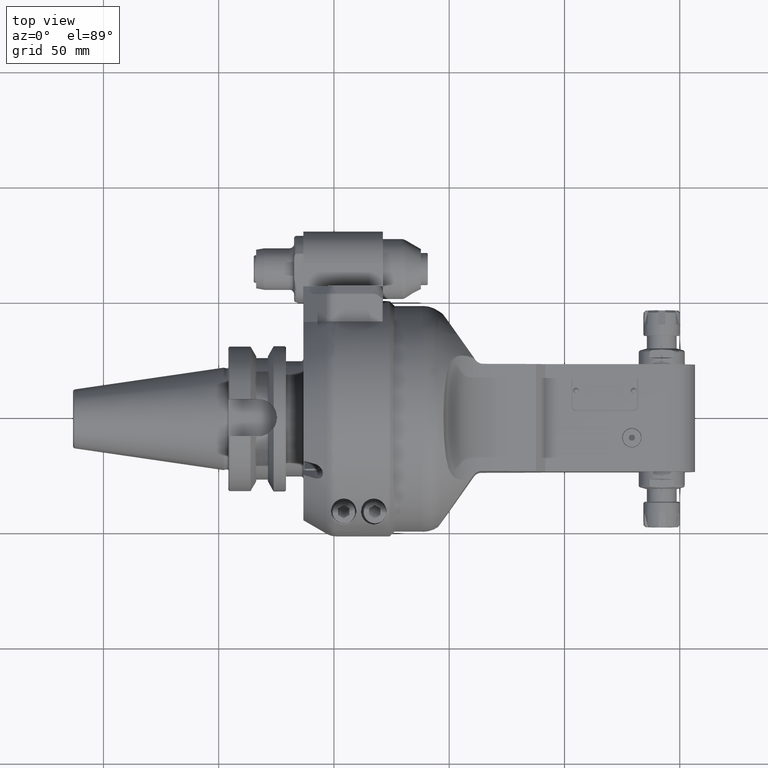
[diagram: clean part render]
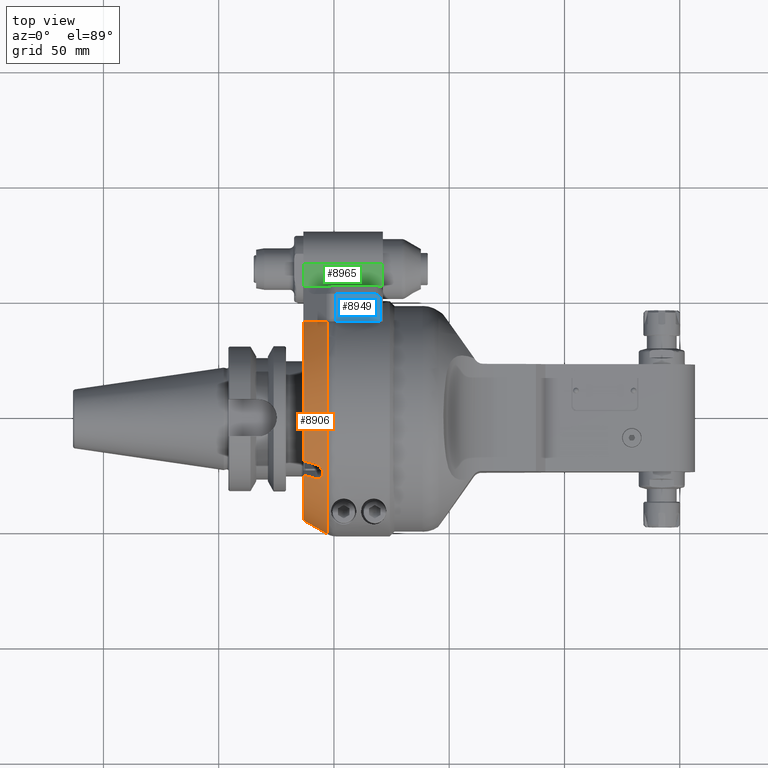
[diagram: same view with three faces highlighted in distinct colors, each labeled with its STEP entity id]
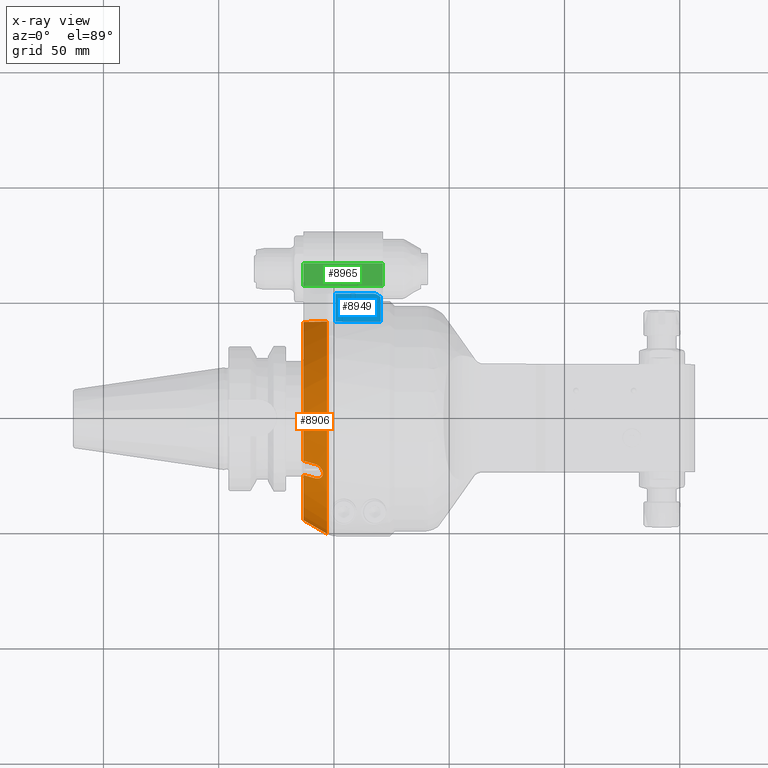
[diagram: x-ray of the same camera — body ghosted, the three highlighted faces saturated]
A machine part, top view with three faces highlighted in distinct colors.
The next image is the same camera in x-ray (body ghosted, the three faces saturated) — at least one of them is partly hidden behind the body in this view.
Their STEP definitions:

[orange] entity #8906 — the highlighted conical surface has half-angle 30 deg.
#174=(
BOUNDED_CURVE()
B_SPLINE_CURVE(2,(#13244,#13245,#13246),.UNSPECIFIED.,.F.,.F.)
B_SPLINE_CURVE_WITH_KNOTS((3,3),(-4.92391023083954,-2.81130786844121),
 .UNSPECIFIED.)
CURVE()
GEOMETRIC_REPRESENTATION_ITEM()
RATIONAL_B_SPLINE_CURVE((1.0074989594549,1.03062027413363,1.03252076511009))
REPRESENTATION_ITEM('')
);
#550=CONICAL_SURFACE('',#9549,46.96410161514,0.523598775598299);
#680=FACE_OUTER_BOUND('',#1240,.T.);
#1240=EDGE_LOOP('',(#6162,#6163,#6164,#6165,#6166,#6167,#6168,#6169));
#1887=CIRCLE('',#9550,49.92820323028);
#1888=CIRCLE('',#9551,44.);
#1889=CIRCLE('',#9552,44.);
#2320=B_SPLINE_CURVE_WITH_KNOTS('',3,(#13511,#13512,#13513,#13514,#13515,
#13516,#13517,#13518,#13519,#13520,#13521,#13522,#13523,#13524,#13525,#13526,
#13527,#13528),.UNSPECIFIED.,.F.,.F.,(4,2,2,2,2,2,2,2,4),(1.11206982951603,
1.24885677734264,1.4029266724495,1.5444028479349,1.68587902342029,1.82735519890569,
1.96883137439109,2.12290126949794,2.25968821731982),.UNSPECIFIED.);
#2322=B_SPLINE_CURVE_WITH_KNOTS('',3,(#13555,#13556,#13557,#13558,#13559,
#13560,#13561,#13562,#13563,#13564),.UNSPECIFIED.,.F.,.F.,(4,3,3,4),(0.,
0.3333333333333,0.6666666666667,1.),.UNSPECIFIED.);
#2324=B_SPLINE_CURVE_WITH_KNOTS('',3,(#13582,#13583,#13584,#13585,#13586,
#13587,#13588,#13589,#13590,#13591),.UNSPECIFIED.,.F.,.F.,(4,3,3,4),(0.,
0.3333333333333,0.6666666666667,1.),.UNSPECIFIED.);
#2325=B_SPLINE_CURVE_WITH_KNOTS('',3,(#13593,#13594,#13595,#13596,#13597,
#13598,#13599,#13600,#13601,#13602),.UNSPECIFIED.,.F.,.F.,(4,3,3,4),(0.,
0.3333333333333,0.6666666666667,1.),.UNSPECIFIED.);
#3757=VERTEX_POINT('',#13241);
#3758=VERTEX_POINT('',#13243);
#3799=VERTEX_POINT('',#13509);
#3800=VERTEX_POINT('',#13510);
#3805=VERTEX_POINT('',#13553);
#3806=VERTEX_POINT('',#13554);
#3809=VERTEX_POINT('',#13580);
#3810=VERTEX_POINT('',#13592);
#4664=EDGE_CURVE('',#3757,#3758,#174,.T.);
#4726=EDGE_CURVE('',#3799,#3800,#2320,.F.);
#4735=EDGE_CURVE('',#3805,#3806,#2322,.T.);
#4740=EDGE_CURVE('',#3758,#3806,#1887,.T.);
#4741=EDGE_CURVE('',#3809,#3757,#1888,.T.);
#4742=EDGE_CURVE('',#3809,#3800,#2324,.T.);
#4743=EDGE_CURVE('',#3799,#3810,#2325,.T.);
#4744=EDGE_CURVE('',#3805,#3810,#1889,.T.);
#6162=ORIENTED_EDGE('',*,*,#4740,.F.);
#6163=ORIENTED_EDGE('',*,*,#4664,.F.);
#6164=ORIENTED_EDGE('',*,*,#4741,.F.);
#6165=ORIENTED_EDGE('',*,*,#4742,.T.);
#6166=ORIENTED_EDGE('',*,*,#4726,.F.);
#6167=ORIENTED_EDGE('',*,*,#4743,.T.);
#6168=ORIENTED_EDGE('',*,*,#4744,.F.);
#6169=ORIENTED_EDGE('',*,*,#4735,.T.);
#8906=ADVANCED_FACE('',(#680),#550,.T.);
#9549=AXIS2_PLACEMENT_3D('',#13578,#10662,#10663);
#9550=AXIS2_PLACEMENT_3D('',#13579,#10664,#10665);
#9551=AXIS2_PLACEMENT_3D('',#13581,#10666,#10667);
#9552=AXIS2_PLACEMENT_3D('',#13603,#10668,#10669);
#10662=DIRECTION('center_axis',(1.,0.,0.));
#10663=DIRECTION('ref_axis',(0.,-1.,0.));
#10664=DIRECTION('center_axis',(1.,0.,0.));
#10665=DIRECTION('ref_axis',(0.,0.836200730225418,0.548423503116412));
#10666=DIRECTION('center_axis',(-1.,0.,0.));
#10667=DIRECTION('ref_axis',(0.,-0.429527235513105,0.90305390423411));
#10668=DIRECTION('center_axis',(-1.,0.,0.));
#10669=DIRECTION('ref_axis',(0.,-0.999418736024773,0.0340909090909091));
#13241=CARTESIAN_POINT('',(-51.5,41.75,13.89019438309));
#13243=CARTESIAN_POINT('',(-41.23205080757,41.75,27.38180011986));
#13244=CARTESIAN_POINT('Ctrl Pts',(-51.4999999999926,41.75,13.8901943831015));
#13245=CARTESIAN_POINT('Ctrl Pts',(-48.0442956678849,41.75,20.2102413125831));
#13246=CARTESIAN_POINT('Ctrl Pts',(-41.2320508075673,41.75,27.3818001198562));
#13509=CARTESIAN_POINT('',(-46.49999999996,-26.40905638146,38.74182743265));
#13510=CARTESIAN_POINT('',(-46.5,-20.34687855495,42.24182743261));
#13511=CARTESIAN_POINT('Ctrl Pts',(-46.5000000000022,-20.3468785549539,
42.2418274326121));
#13512=CARTESIAN_POINT('Ctrl Pts',(-46.0992085079171,-20.4629008008145,
42.4427838572514));
#13513=CARTESIAN_POINT('Ctrl Pts',(-45.6780271021369,-20.6496060415951,
42.6229397461814));
#13514=CARTESIAN_POINT('Ctrl Pts',(-44.8336229766582,-21.1765134567461,
42.9080443216851));
#13515=CARTESIAN_POINT('Ctrl Pts',(-44.416786404141,-21.5338827677997,43.000036123302));
#13516=CARTESIAN_POINT('Ctrl Pts',(-43.7689100689263,-22.2748250788787,
43.0423244163336));
#13517=CARTESIAN_POINT('Ctrl Pts',(-43.4858969585476,-22.7012115036421,
43.0050112903121));
#13518=CARTESIAN_POINT('Ctrl Pts',(-43.1011571537055,-23.5864558934365,
42.779754686541));
#13519=CARTESIAN_POINT('Ctrl Pts',(-43.,-24.0453321040545,42.5909113923236));
#13520=CARTESIAN_POINT('Ctrl Pts',(-43.,-24.8621451840586,42.1193241407056));
#13521=CARTESIAN_POINT('Ctrl Pts',(-43.1011571537054,-25.2551263794943,
41.8163473322267));
#13522=CARTESIAN_POINT('Ctrl Pts',(-43.4858969585476,-25.8928265156274,
41.1623315039927));
#13523=CARTESIAN_POINT('Ctrl Pts',(-43.7689100689263,-26.1383338430383,
40.8117265913295));
#13524=CARTESIAN_POINT('Ctrl Pts',(-44.416786404141,-26.4721822625297,40.1489075806805));
#13525=CARTESIAN_POINT('Ctrl Pts',(-44.8336229766582,-26.5711996809163,
39.7934207779667));
#13526=CARTESIAN_POINT('Ctrl Pts',(-45.6780271021231,-26.5877455833702,
39.1945532832615));
#13527=CARTESIAN_POINT('Ctrl Pts',(-46.0992085078879,-26.5250786273105,
38.9427838572684));
#13528=CARTESIAN_POINT('Ctrl Pts',(-46.4999999999604,-26.409056381457,38.7418274326329));
#13553=CARTESIAN_POINT('',(-51.5,-43.97442438509,1.5));
#13554=CARTESIAN_POINT('',(-41.2320587089715,-49.9056612221311,1.50000006858959));
#13555=CARTESIAN_POINT('Ctrl Pts',(-51.5,-43.97442438509,1.5));
#13556=CARTESIAN_POINT('Ctrl Pts',(-50.3591242554,-44.63349239584,1.5));
#13557=CARTESIAN_POINT('Ctrl Pts',(-49.2182445912652,-45.2925454352499,
1.5));
#13558=CARTESIAN_POINT('Ctrl Pts',(-48.0773635402228,-45.9515842405682,
1.5));
#13559=CARTESIAN_POINT('Ctrl Pts',(-46.9364824891801,-46.6106230458866,
1.5));
#13560=CARTESIAN_POINT('Ctrl Pts',(-45.7956000512299,-47.2696476171134,
1.5));
#13561=CARTESIAN_POINT('Ctrl Pts',(-44.6547122553372,-47.9286620207944,
1.5));
#13562=CARTESIAN_POINT('Ctrl Pts',(-43.5138244594448,-48.5876764244751,
1.5));
#13563=CARTESIAN_POINT('Ctrl Pts',(-42.37293130561,-49.24668066061,1.5));
#13564=CARTESIAN_POINT('Ctrl Pts',(-41.23206660847,-49.90565666041,1.5));
#13578=CARTESIAN_POINT('Origin',(-46.36602540378,0.,0.));
#13579=CARTESIAN_POINT('Origin',(-41.23205080757,0.,0.));
#13580=CARTESIAN_POINT('',(-51.5,-18.89919836257,39.7343717863));
#13581=CARTESIAN_POINT('Origin',(-51.5,0.,0.));
#13582=CARTESIAN_POINT('Ctrl Pts',(-51.5000000000014,-18.8991983625711,
39.7343717863022));
#13583=CARTESIAN_POINT('Ctrl Pts',(-50.9444542650933,-19.0600803989624,
40.0130276473551));
#13584=CARTESIAN_POINT('Ctrl Pts',(-50.388904658883,-19.2209523393287,40.2916660666116));
#13585=CARTESIAN_POINT('Ctrl Pts',(-49.8333517949314,-19.3818147452656,
40.5702879469609));
#13586=CARTESIAN_POINT('Ctrl Pts',(-49.2777989309796,-19.5426771512026,
40.8489098273103));
#13587=CARTESIAN_POINT('Ctrl Pts',(-48.7222428089151,-19.7035300221847,
41.12751516829));
#13588=CARTESIAN_POINT('Ctrl Pts',(-48.1666839961689,-19.8643738399584,
41.4061048113134));
#13589=CARTESIAN_POINT('Ctrl Pts',(-47.6111251834229,-20.0252176577319,
41.6846944543368));
#13590=CARTESIAN_POINT('Ctrl Pts',(-47.0555636796713,-20.186052421901,41.963268398972));
#13591=CARTESIAN_POINT('Ctrl Pts',(-46.5000000000021,-20.3468785549516,
42.2418274326133));
#13592=CARTESIAN_POINT('',(-51.5,-24.96137618907,36.2343717863));
#13593=CARTESIAN_POINT('Ctrl Pts',(-46.4999999999533,-26.4090563814534,
38.7418274326404));
#13594=CARTESIAN_POINT('Ctrl Pts',(-47.0555636796356,-26.2482302483957,
38.4632683989937));
#13595=CARTESIAN_POINT('Ctrl Pts',(-47.6111251834248,-26.0873955175853,
38.1846944350734));
#13596=CARTESIAN_POINT('Ctrl Pts',(-48.1666839961872,-25.9265517183778,
37.9061047813199));
#13597=CARTESIAN_POINT('Ctrl Pts',(-48.7222428089498,-25.7657079191702,
37.6275151275664));
#13598=CARTESIAN_POINT('Ctrl Pts',(-49.2777989310094,-25.6048550517416,
37.3489097845386));
#13599=CARTESIAN_POINT('Ctrl Pts',(-49.8333517949564,-25.4439926282768,
37.0702879143124));
#13600=CARTESIAN_POINT('Ctrl Pts',(-50.3889046589031,-25.283130204812,36.7916660440862));
#13601=CARTESIAN_POINT('Ctrl Pts',(-50.9444542651086,-25.1222582254486,
36.5130276473481));
#13602=CARTESIAN_POINT('Ctrl Pts',(-51.4999999999959,-24.9613761890659,
36.2343717863041));
#13603=CARTESIAN_POINT('Origin',(-51.5,0.,0.));

[blue] entity #8949 — the highlighted planar face has unit normal (0, 0, -1).
#192=(
BOUNDED_CURVE()
B_SPLINE_CURVE(2,(#13822,#13823,#13824),.UNSPECIFIED.,.F.,.F.)
B_SPLINE_CURVE_WITH_KNOTS((3,3),(1.73736103353156,2.47170469126801),
 .UNSPECIFIED.)
CURVE()
GEOMETRIC_REPRESENTATION_ITEM()
RATIONAL_B_SPLINE_CURVE((1.75262800199672,1.75262800199672,1.61816620350837))
REPRESENTATION_ITEM('')
);
#322=PLANE('',#9611);
#723=FACE_OUTER_BOUND('',#1286,.T.);
#1286=EDGE_LOOP('',(#6356,#6357,#6358,#6359,#6360));
#2537=LINE('',#13812,#3181);
#2540=LINE('',#13819,#3184);
#2541=LINE('',#13821,#3185);
#2542=LINE('',#13825,#3186);
#3181=VECTOR('',#10829,16.58801200719);
#3184=VECTOR('',#10834,19.58801152481);
#3185=VECTOR('',#10835,10.59664825895);
#3186=VECTOR('',#10836,12.03589858901);
#3854=VERTEX_POINT('',#13805);
#3856=VERTEX_POINT('',#13811);
#3858=VERTEX_POINT('',#13817);
#3859=VERTEX_POINT('',#13818);
#3860=VERTEX_POINT('',#13820);
#4820=EDGE_CURVE('',#3856,#3854,#2537,.T.);
#4823=EDGE_CURVE('',#3858,#3859,#2540,.T.);
#4824=EDGE_CURVE('',#3860,#3858,#2541,.T.);
#4825=EDGE_CURVE('',#3856,#3860,#192,.T.);
#4826=EDGE_CURVE('',#3859,#3854,#2542,.T.);
#6356=ORIENTED_EDGE('',*,*,#4823,.F.);
#6357=ORIENTED_EDGE('',*,*,#4824,.F.);
#6358=ORIENTED_EDGE('',*,*,#4825,.F.);
#6359=ORIENTED_EDGE('',*,*,#4820,.T.);
#6360=ORIENTED_EDGE('',*,*,#4826,.F.);
#8949=ADVANCED_FACE('',(#723),#322,.F.);
#9611=AXIS2_PLACEMENT_3D('',#13816,#10832,#10833);
#10829=DIRECTION('',(-1.,-1.17976780454E-8,4.371282475133E-12));
#10832=DIRECTION('center_axis',(0.,0.,-1.));
#10833=DIRECTION('ref_axis',(0.,1.,0.));
#10834=DIRECTION('',(-1.,0.,0.));
#10835=DIRECTION('',(-8.150357303662E-13,-1.,3.486783873224E-14));
#10836=DIRECTION('',(1.751169642154E-10,1.,6.022780049711E-12));
#13805=CARTESIAN_POINT('',(-37.5880115227062,53.7858985008135,29.0000000101783));
#13811=CARTESIAN_POINT('',(-20.99999951552,53.78589878471,29.));
#13812=CARTESIAN_POINT('',(-20.99999951552,53.78589878471,29.));
#13816=CARTESIAN_POINT('Origin',(-43.,75.75,29.));
#13817=CARTESIAN_POINT('',(-18.,41.75,29.));
#13818=CARTESIAN_POINT('',(-37.58801152481,41.75,29.));
#13819=CARTESIAN_POINT('',(-18.,41.75,29.));
#13820=CARTESIAN_POINT('',(-17.99999999999,52.34664825895,29.));
#13821=CARTESIAN_POINT('',(-17.99999999999,52.34664825895,29.));
#13822=CARTESIAN_POINT('Ctrl Pts',(-20.99999951552,53.7858987847063,29.));
#13823=CARTESIAN_POINT('Ctrl Pts',(-19.6150798917026,53.7858987847063,29.));
#13824=CARTESIAN_POINT('Ctrl Pts',(-18.0000000000752,52.3466482590111,29.));
#13825=CARTESIAN_POINT('',(-37.58801152481,41.75,29.));

[green] entity #8965 — the highlighted planar face has unit normal (0, 0, -1).
#331=PLANE('',#9654);
#739=FACE_OUTER_BOUND('',#1307,.T.);
#1307=EDGE_LOOP('',(#6482,#6483,#6484,#6485));
#2555=LINE('',#13877,#3199);
#2578=LINE('',#13953,#3222);
#2587=LINE('',#13984,#3231);
#2590=LINE('',#13992,#3234);
#3199=VECTOR('',#10873,10.);
#3222=VECTOR('',#10930,10.);
#3231=VECTOR('',#10959,34.5);
#3234=VECTOR('',#10970,34.5);
#3883=VERTEX_POINT('',#13874);
#3884=VERTEX_POINT('',#13876);
#3907=VERTEX_POINT('',#13950);
#3908=VERTEX_POINT('',#13952);
#4850=EDGE_CURVE('',#3884,#3883,#2555,.T.);
#4885=EDGE_CURVE('',#3908,#3907,#2578,.T.);
#4902=EDGE_CURVE('',#3907,#3884,#2587,.T.);
#4906=EDGE_CURVE('',#3908,#3883,#2590,.T.);
#6482=ORIENTED_EDGE('',*,*,#4902,.T.);
#6483=ORIENTED_EDGE('',*,*,#4850,.T.);
#6484=ORIENTED_EDGE('',*,*,#4906,.F.);
#6485=ORIENTED_EDGE('',*,*,#4885,.T.);
#8965=ADVANCED_FACE('',(#739),#331,.F.);
#9654=AXIS2_PLACEMENT_3D('',#13991,#10968,#10969);
#10873=DIRECTION('',(0.,1.,0.));
#10930=DIRECTION('',(0.,-1.,0.));
#10959=DIRECTION('',(1.,0.,0.));
#10968=DIRECTION('center_axis',(0.,0.,-1.));
#10969=DIRECTION('ref_axis',(1.,0.,0.));
#10970=DIRECTION('',(1.,0.,0.));
#13874=CARTESIAN_POINT('',(-17.,67.25,15.));
#13876=CARTESIAN_POINT('',(-17.,57.25,15.));
#13877=CARTESIAN_POINT('',(-17.,57.25,15.));
#13950=CARTESIAN_POINT('',(-51.5,57.25,15.));
#13952=CARTESIAN_POINT('',(-51.5,67.25,15.));
#13953=CARTESIAN_POINT('',(-51.5,67.25,15.));
#13984=CARTESIAN_POINT('',(-51.5,57.25,15.));
#13991=CARTESIAN_POINT('Origin',(-64.3,37.7999976,15.));
#13992=CARTESIAN_POINT('',(-51.5,67.25,15.));